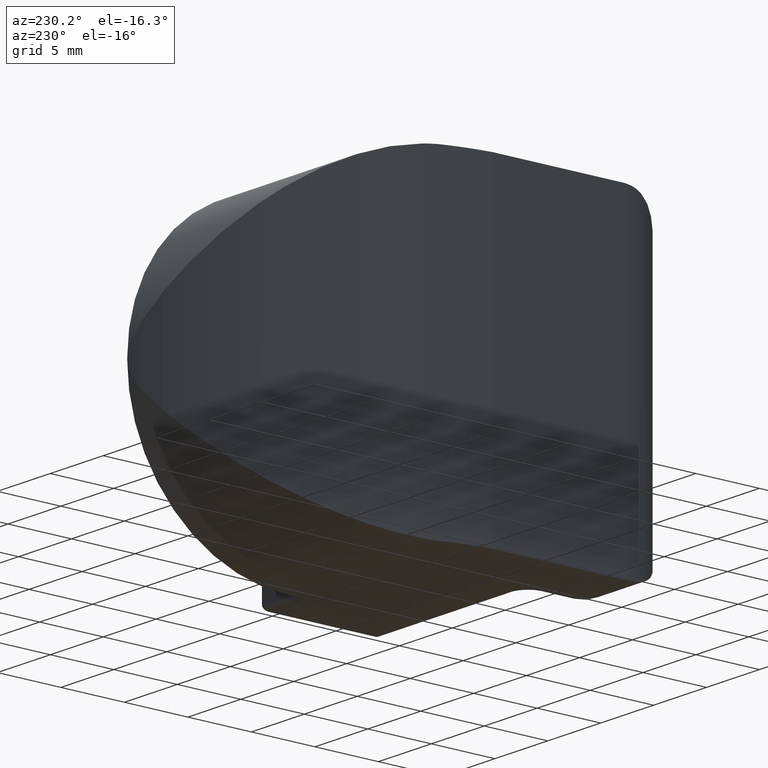
[diagram: clean part render]
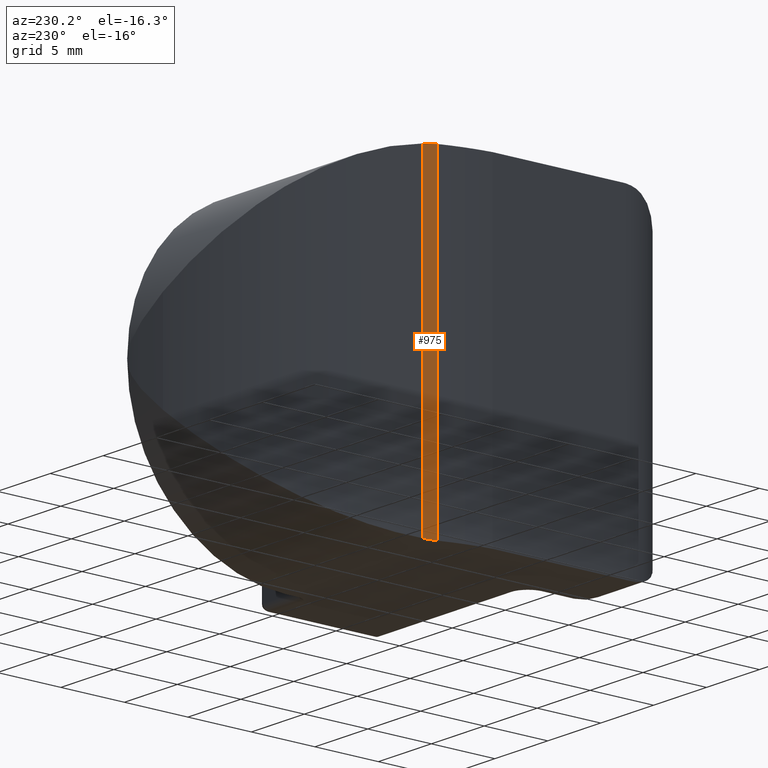
[diagram: same view with one face highlighted and labeled with its STEP entity id]
A machine part, auxiliary view. The second image highlights one B-rep face of the part: STEP entity #975.
In plain terms, the highlighted planar face has unit normal (-0.9401, 0.3409, 0).
Its self-contained STEP definition (entity closure, byte-faithful):
#26=ELLIPSE('',#1073,13.296427564446,12.5);
#27=ELLIPSE('',#1075,13.296427564446,12.5);
#48=PLANE('',#1105);
#94=LINE('',#1788,#163);
#116=LINE('',#1935,#185);
#163=VECTOR('',#1315,10.);
#185=VECTOR('',#1393,10.);
#271=FACE_OUTER_BOUND('',#330,.T.);
#330=EDGE_LOOP('',(#901,#902,#903,#904));
#460=VERTEX_POINT('',#1727);
#461=VERTEX_POINT('',#1729);
#464=VERTEX_POINT('',#1768);
#465=VERTEX_POINT('',#1783);
#580=EDGE_CURVE('',#461,#460,#26,.T.);
#585=EDGE_CURVE('',#465,#464,#27,.T.);
#588=EDGE_CURVE('',#460,#465,#94,.T.);
#624=EDGE_CURVE('',#461,#464,#116,.T.);
#901=ORIENTED_EDGE('',*,*,#580,.T.);
#902=ORIENTED_EDGE('',*,*,#588,.T.);
#903=ORIENTED_EDGE('',*,*,#585,.T.);
#904=ORIENTED_EDGE('',*,*,#624,.F.);
#975=ADVANCED_FACE('',(#271),#48,.T.);
#1073=AXIS2_PLACEMENT_3D('',#1730,#1304,#1305);
#1075=AXIS2_PLACEMENT_3D('',#1784,#1308,#1309);
#1105=AXIS2_PLACEMENT_3D('',#1934,#1391,#1392);
#1304=DIRECTION('center_axis',(-0.940102139421596,0.340892897337181,0.));
#1305=DIRECTION('ref_axis',(0.340892897337181,0.940102139421596,1.25246764882227E-16));
#1308=DIRECTION('center_axis',(-0.940102139421596,0.340892897337181,0.));
#1309=DIRECTION('ref_axis',(-0.340892897337181,-0.940102139421596,0.));
#1315=DIRECTION('',(0.,0.,1.));
#1391=DIRECTION('center_axis',(-0.940102139421596,0.340892897337181,0.));
#1392=DIRECTION('ref_axis',(-0.340892897337181,-0.940102139421596,0.));
#1393=DIRECTION('',(0.,0.,1.));
#1727=CARTESIAN_POINT('',(-12.1219999719219,6.30494897719359,-12.4948429362031));
#1729=CARTESIAN_POINT('',(-11.7999999682277,7.19294897581834,-12.4376414568553));
#1730=CARTESIAN_POINT('Origin',(-12.2521874965952,5.94592251630966,0.));
#1768=CARTESIAN_POINT('',(-11.7999999682277,7.19294897581834,12.4376414568553));
#1783=CARTESIAN_POINT('',(-12.1219999719219,6.30494897719359,12.4948429362031));
#1784=CARTESIAN_POINT('Origin',(-12.2521874965952,5.94592251630966,0.));
#1788=CARTESIAN_POINT('',(-12.1219999719219,6.30494897719359,0.));
#1934=CARTESIAN_POINT('Origin',(-11.7999999682277,7.19294897581834,0.));
#1935=CARTESIAN_POINT('',(-11.7999999682277,7.19294897581834,0.));